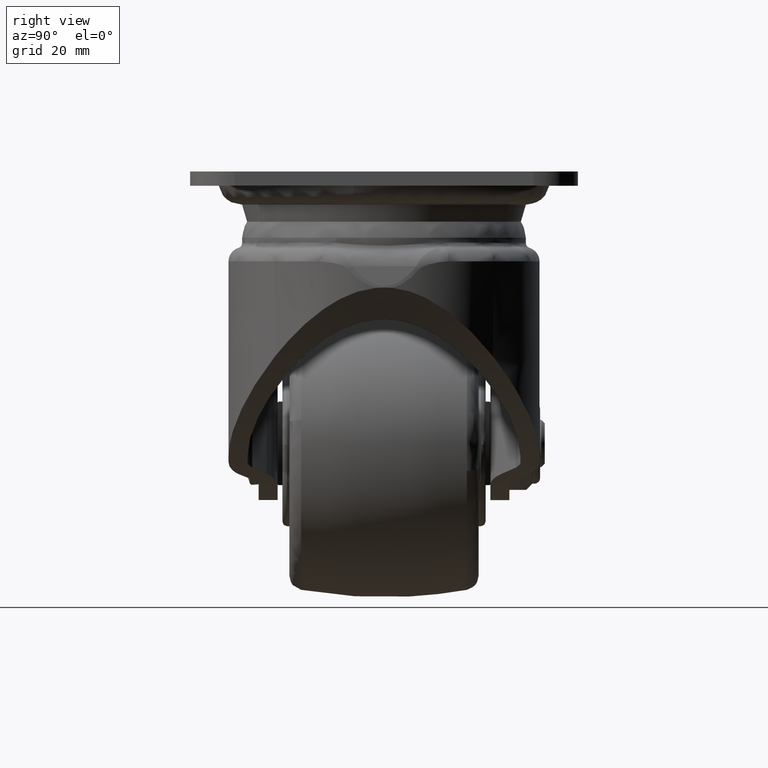
[diagram: clean part render]
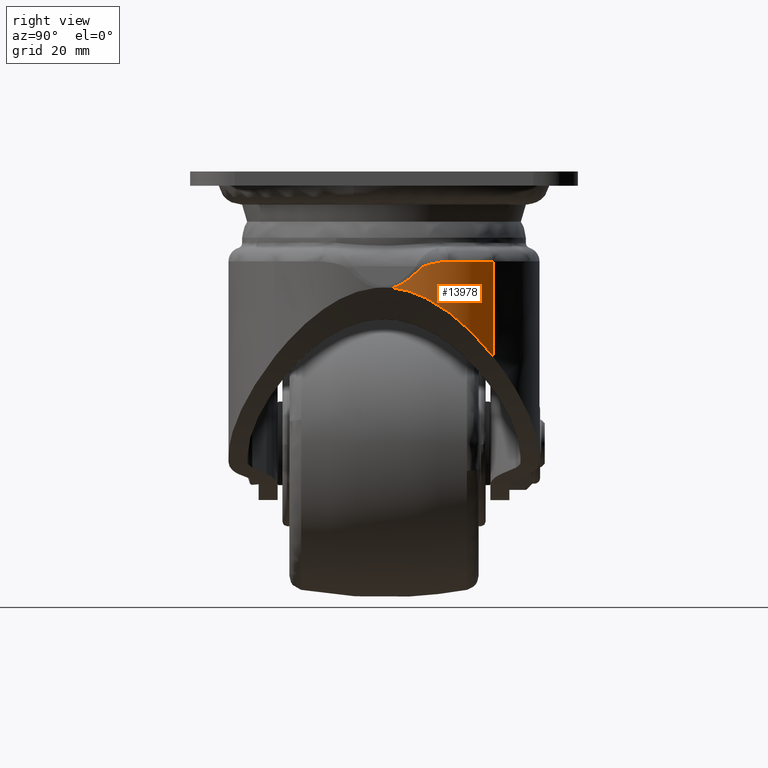
[diagram: same view with one face highlighted and labeled with its STEP entity id]
A machine part, right view. The second image highlights one B-rep face of the part: STEP entity #13978.
In plain terms, the highlighted face is a freeform B-spline surface patch.
Its self-contained STEP definition (entity closure, byte-faithful):
#13860=CARTESIAN_POINT('',(45.494067025188393,23.754770310896649,17.874113653313959));
#13861=CARTESIAN_POINT('',(45.494067025188393,23.754770310896649,39.015647158666233));
#13862=CARTESIAN_POINT('',(55.772794970520735,14.407219604863348,17.874113653313966));
#13863=CARTESIAN_POINT('',(55.772794970520735,14.407219604863348,39.015647158666219));
#13864=CARTESIAN_POINT('',(55.995863263991453,0.515524499064793,17.874113653313962));
#13865=CARTESIAN_POINT('',(55.995863263991453,0.515524499064793,39.015647158666226));
#13873=(BOUNDED_SURFACE()B_SPLINE_SURFACE(1,2,((#13860,#13862,#13864),(#13861,#13863,#13865)),.UNSPECIFIED.,.F.,.F.,.U.)B_SPLINE_SURFACE_WITH_KNOTS((2,2),(3,3),(0.0,21.141533505352260),(0.0,26.595446153010510),.UNSPECIFIED.)GEOMETRIC_REPRESENTATION_ITEM()RATIONAL_B_SPLINE_SURFACE(((1.0,0.915773079052979,0.995659552700975),(1.0,0.915773079052979,0.995659552700975)))REPRESENTATION_ITEM('')SURFACE());
#13874=CARTESIAN_POINT('',(52.940211671993701,13.679526736069020,38.499999999999098));
#13875=VERTEX_POINT('',#13874);
#13876=CARTESIAN_POINT('',(55.105803146371201,7.524861021349750,36.881616935173398));
#13877=VERTEX_POINT('',#13876);
#13878=CARTESIAN_POINT('',(52.940211671993701,13.679526736069020,38.499999999999098));
#13879=CARTESIAN_POINT('',(53.062025420226497,13.420851392519600,38.499999999999993));
#13880=CARTESIAN_POINT('',(53.179905630676352,13.161569434527230,38.490919216005047));
#13881=CARTESIAN_POINT('',(53.408063613311050,12.641597904080911,38.457315485378977));
#13882=CARTESIAN_POINT('',(53.628617333258227,12.120221081052870,38.408242043045782));
#13883=CARTESIAN_POINT('',(53.834311572420823,11.595850942255140,38.331155651247457));
#13884=CARTESIAN_POINT('',(53.983092550173190,11.201450547795121,38.263143558381252));
#13885=CARTESIAN_POINT('',(54.031770798041720,11.069797321810549,38.238765298697160));
#13886=CARTESIAN_POINT('',(54.127304810790363,10.806128196272869,38.186533158110123));
#13887=CARTESIAN_POINT('',(54.174194141477230,10.674011513754751,38.158654938725817));
#13888=CARTESIAN_POINT('',(54.311625450849817,10.278638165338119,38.069922208809821));
#13889=CARTESIAN_POINT('',(54.399084126543762,10.015943616202190,38.003990443119633));
#13890=CARTESIAN_POINT('',(54.565796501532773,9.493117753195483,37.856233918919223));
#13891=CARTESIAN_POINT('',(54.645059073681573,9.232939170334294,37.774564991130269));
#13892=CARTESIAN_POINT('',(54.757663488816000,8.846150219229358,37.635161350345903));
#13893=CARTESIAN_POINT('',(54.794147594444830,8.717811591059583,37.585839490313653));
#13894=CARTESIAN_POINT('',(54.864914077803178,8.462946293306297,37.479428445730939));
#13895=CARTESIAN_POINT('',(54.899216686861472,8.336338829531373,37.422384398238840));
#13896=CARTESIAN_POINT('',(54.965321868477943,8.086445933653280,37.296453394051873));
#13897=CARTESIAN_POINT('',(54.996747862569322,7.964558798366300,37.228487527370064));
#13898=CARTESIAN_POINT('',(55.040660885356132,7.790355707299013,37.112933081469592));
#13899=CARTESIAN_POINT('',(55.054756202824031,7.733748681259891,37.072112857896592));
#13900=CARTESIAN_POINT('',(55.081524157202637,7.625076290025902,36.983410640878191));
#13901=CARTESIAN_POINT('',(55.094216100117393,7.572926206852779,36.935657739377113));
#13902=CARTESIAN_POINT('',(55.105803146371201,7.524861021349749,36.881616935173348));
#13903=B_SPLINE_CURVE_WITH_KNOTS('',3,(#13878,#13879,#13880,#13881,#13882,#13883,#13884,#13885,#13886,#13887,#13888,#13889,#13890,#13891,#13892,#13893,#13894,#13895,#13896,#13897,#13898,#13899,#13900,#13901,#13902),.UNSPECIFIED.,.F.,.U.,(4,2,1,2,2,2,2,2,2,2,2,2,4),(0.0,0.124999999999999,0.249999999999999,0.374999999999998,0.437499999999999,0.499999999999999,0.624999999999999,0.750000000000000,0.812499999999999,0.874999999999999,0.937499999999999,0.968749999999999,1.0),.UNSPECIFIED.);
#13904=EDGE_CURVE('',#13875,#13877,#13903,.T.);
#13905=ORIENTED_EDGE('',*,*,#13904,.T.);
#13906=CARTESIAN_POINT('',(55.955597751897002,1.688063151929230,32.918261401364951));
#13907=VERTEX_POINT('',#13906);
#13908=CARTESIAN_POINT('',(55.105803146371201,7.524861021349750,36.881616935173398));
#13909=CARTESIAN_POINT('',(55.799891818219869,4.645654359256065,33.644458025671952));
#13910=CARTESIAN_POINT('',(55.955597751897002,1.688063151930227,32.918261401364937));
#13918=(BOUNDED_CURVE()B_SPLINE_CURVE(2,(#13908,#13909,#13910),.UNSPECIFIED.,.F.,.U.)CURVE()GEOMETRIC_REPRESENTATION_ITEM()QUASI_UNIFORM_CURVE()RATIONAL_B_SPLINE_CURVE((1.0,0.995772900883728,1.0))REPRESENTATION_ITEM(''));
#13919=EDGE_CURVE('',#13877,#13907,#13918,.T.);
#13920=ORIENTED_EDGE('',*,*,#13919,.T.);
#13921=CARTESIAN_POINT('',(46.209957978204997,23.083460919150401,18.377184052013600));
#13922=VERTEX_POINT('',#13921);
#13923=CARTESIAN_POINT('',(46.209957978204997,23.083460919150401,18.377184052013600));
#13924=CARTESIAN_POINT('',(46.890962060564277,22.425020044129710,19.214658411072609));
#13925=CARTESIAN_POINT('',(47.541638218272652,21.737792882984561,20.043994618655709));
#13926=CARTESIAN_POINT('',(48.784765565203926,20.302352581208691,21.681148905372279));
#13927=CARTESIAN_POINT('',(49.377224007553536,19.554180270631178,22.489003905362662));
#13928=CARTESIAN_POINT('',(50.504589726009712,17.989750093695580,24.075402871627009));
#13929=CARTESIAN_POINT('',(51.039522090421158,17.173578542963039,24.854017967227431));
#13930=CARTESIAN_POINT('',(51.797612923509163,15.888790847728650,25.991016220674091));
#13931=CARTESIAN_POINT('',(52.042906016471157,15.450389494196660,26.364823299756889));
#13932=CARTESIAN_POINT('',(52.518188809018319,14.550900251132180,27.099922544096231));
#13933=CARTESIAN_POINT('',(52.748181589285267,14.089821124942610,27.461221552274630));
#13934=CARTESIAN_POINT('',(53.081110493833883,13.378795699841760,27.991733043830010));
#13935=CARTESIAN_POINT('',(53.190074243729512,13.138545785414340,28.166658621648619));
#13936=CARTESIAN_POINT('',(53.350400667878297,12.772933142616701,28.425863836739179));
#13937=CARTESIAN_POINT('',(53.403360304200220,12.650099386211540,28.511795865819241));
#13938=CARTESIAN_POINT('',(53.508022331860573,12.403083371333629,28.682217276114070));
#13939=CARTESIAN_POINT('',(53.559704990311900,12.278951264830420,28.766673982803720));
#13940=CARTESIAN_POINT('',(53.814844876751010,11.655082506618591,29.185046425076969));
#13941=CARTESIAN_POINT('',(54.008500159820933,11.145747169481250,29.507265438501090));
#13942=CARTESIAN_POINT('',(54.373811246344232,10.103956490251189,30.122580117982132));
#13943=CARTESIAN_POINT('',(54.545472747828363,9.571508860339360,30.415686466497920));
#13944=CARTESIAN_POINT('',(54.865164649867488,8.480082557148467,30.967526835849512));
#13945=CARTESIAN_POINT('',(55.013204120480822,7.921115563506509,31.226276774623312));
#13946=CARTESIAN_POINT('',(55.181984139855707,7.203026609127835,31.524020579834801));
#13947=CARTESIAN_POINT('',(55.214961774079669,7.058261160048401,31.582346755642462));
#13948=CARTESIAN_POINT('',(55.278970907847260,6.767935658907361,31.695822730928409));
#13949=CARTESIAN_POINT('',(55.372117611395922,6.331066374323407,31.861363416417429));
#13950=CARTESIAN_POINT('',(55.456587491838107,5.889969598264396,32.012543645647924));
#13951=CARTESIAN_POINT('',(55.613709332716297,5.001897971171360,32.294800086407967));
#13952=CARTESIAN_POINT('',(55.702719299320492,4.402018921157811,32.456182812866508));
#13953=CARTESIAN_POINT('',(55.847502608895908,3.185166323741748,32.719855061139533));
#13954=CARTESIAN_POINT('',(55.903280076589091,2.568193236508992,32.822144384325277));
#13955=CARTESIAN_POINT('',(55.946344165200102,1.857429691837635,32.901252703005767));
#13956=CARTESIAN_POINT('',(55.951135110806931,1.772832662051276,32.910057212069567));
#13957=CARTESIAN_POINT('',(55.955598012272830,1.688063181861296,32.918261569180103));
#13958=B_SPLINE_CURVE_WITH_KNOTS('',3,(#13923,#13924,#13925,#13926,#13927,#13928,#13929,#13930,#13931,#13932,#13933,#13934,#13935,#13936,#13937,#13938,#13939,#13940,#13941,#13942,#13943,#13944,#13945,#13946,#13947,#13948,#13949,#13950,#13951,#13952,#13953,#13954,#13955,#13956,#13957),.UNSPECIFIED.,.F.,.U.,(4,2,2,2,2,2,2,2,2,2,2,2,2,1,2,2,2,4),(0.0,0.062500000000000,0.125000000000000,0.187500000000000,0.218750000000000,0.249999999999999,0.265624999999999,0.273437499999999,0.281249999999999,0.312499999999999,0.343749999999999,0.374999999999999,0.382812499999999,0.390624999999999,0.406249999999999,0.437499999999999,0.468749999999999,0.472962329474234),.UNSPECIFIED.);
#13959=EDGE_CURVE('',#13922,#13907,#13958,.T.);
#13960=ORIENTED_EDGE('',*,*,#13959,.F.);
#13961=CARTESIAN_POINT('',(46.209957978204997,23.083460919150401,38.499999999999098));
#13962=VERTEX_POINT('',#13961);
#13963=CARTESIAN_POINT('',(46.209957978204997,23.083460919150401,18.377184052013600));
#13964=CARTESIAN_POINT('',(46.209957978204997,23.083460919150401,38.499999999999098));
#13965=QUASI_UNIFORM_CURVE('',1,(#13963,#13964),.UNSPECIFIED.,.F.,.U.);
#13966=EDGE_CURVE('',#13922,#13962,#13965,.T.);
#13967=ORIENTED_EDGE('',*,*,#13966,.T.);
#13968=CARTESIAN_POINT('',(46.209957978204997,23.083460919150401,38.499999999999098));
#13969=CARTESIAN_POINT('',(47.821124473723081,21.526160779740010,38.499999999999190));
#13970=CARTESIAN_POINT('',(50.323937826836072,18.538977432790791,38.499999999998963));
#13971=CARTESIAN_POINT('',(52.243649904120247,15.158873193748750,38.499999999999169));
#13972=CARTESIAN_POINT('',(52.940211671993701,13.679526736069020,38.499999999999098));
#13973=B_SPLINE_CURVE_WITH_KNOTS('',3,(#13968,#13969,#13970,#13971,#13972),.UNSPECIFIED.,.F.,.U.,(4,1,4),(4.173360E-009,6.722215152230326,11.627628199551520),.UNSPECIFIED.);
#13974=EDGE_CURVE('',#13962,#13875,#13973,.T.);
#13975=ORIENTED_EDGE('',*,*,#13974,.T.);
#13976=EDGE_LOOP('',(#13905,#13920,#13960,#13967,#13975));
#13977=FACE_OUTER_BOUND('',#13976,.T.);
#13978=ADVANCED_FACE('',(#13977),#13873,.T.);